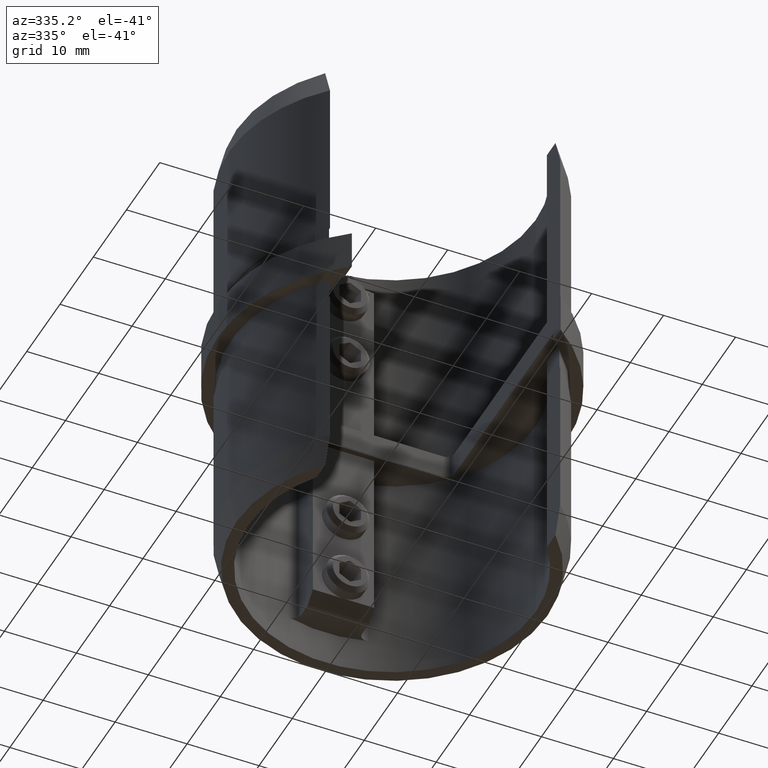
[diagram: clean part render]
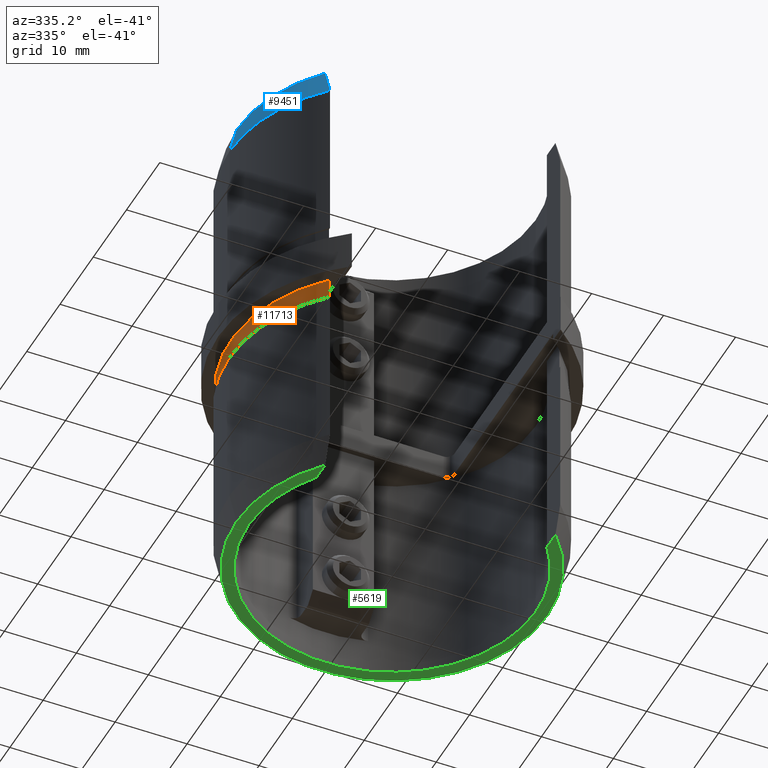
[diagram: same view with three faces highlighted in distinct colors, each labeled with its STEP entity id]
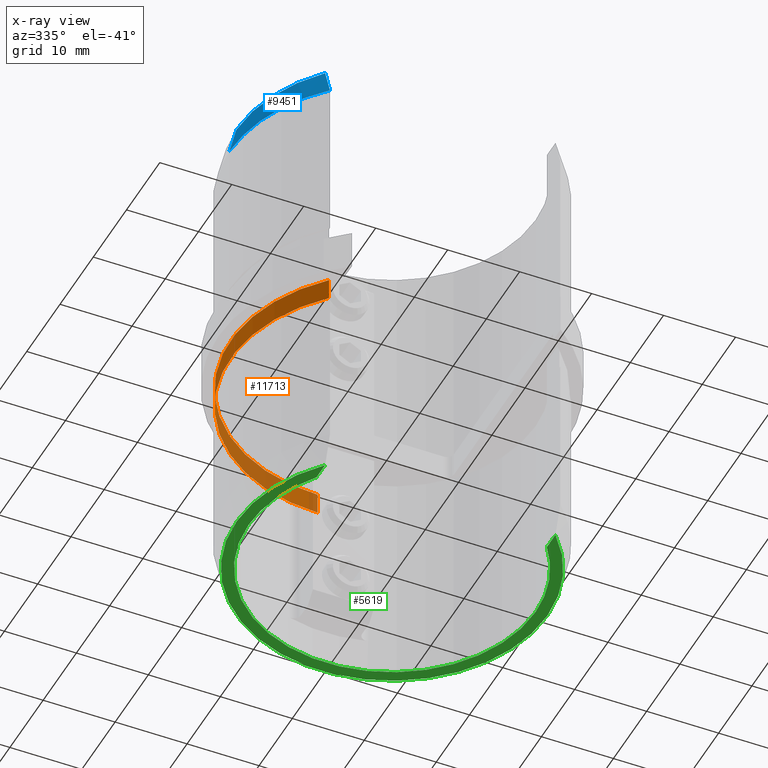
[diagram: x-ray of the same camera — body ghosted, the three highlighted faces saturated]
A machine part, auxiliary view with three faces highlighted in distinct colors.
The next image is the same camera in x-ray (body ghosted, the three faces saturated) — at least one of them is partly hidden behind the body in this view.
Their STEP definitions:

[orange] entity #11713 — the highlighted cylindrical surface (partial cylindrical patch) has radius 22.4 mm, axis along (0, -0, 1).
#32 = CYLINDRICAL_SURFACE ( 'NONE', #9538, 22.40000000000000200 ) ;
#90 = DIRECTION ( 'NONE',  ( 0.0000000000000000000, 1.000000000000000000, 1.059373115100340200E-016 ) ) ;
#424 = CARTESIAN_POINT ( 'NONE',  ( 0.0000000000000000000, 22.40000000000000200, -2.750000000000000000 ) ) ;
#1733 = CARTESIAN_POINT ( 'NONE',  ( 0.0000000000000000000, 22.40000000000000200, 2.372995777824762300E-015 ) ) ;
#1926 = ORIENTED_EDGE ( 'NONE', *, *, #10405, .T. ) ;
#2718 = CARTESIAN_POINT ( 'NONE',  ( -15.99999999999999600, -15.67673435381234800, -5.750000000000004400 ) ) ;
#3049 = AXIS2_PLACEMENT_3D ( 'NONE', #4833, #20818, #19244 ) ;
#3588 = EDGE_LOOP ( 'NONE', ( #12943, #7506, #17561, #1926 ) ) ;
#3677 = EDGE_CURVE ( 'NONE', #3925, #10492, #15122, .T. ) ;
#3925 = VERTEX_POINT ( 'NONE', #2718 ) ;
#4464 = LINE ( 'NONE', #12828, #5204 ) ;
#4833 = CARTESIAN_POINT ( 'NONE',  ( 0.0000000000000000000, 2.913276066525937600E-016, -2.750000000000002200 ) ) ;
#5001 = DIRECTION ( 'NONE',  ( -0.0000000000000000000, -1.059373115100340100E-016, 1.000000000000000000 ) ) ;
#5204 = VECTOR ( 'NONE', #5001, 1000.000000000000000 ) ;
#5341 = EDGE_CURVE ( 'NONE', #3925, #10688, #4464, .T. ) ;
#7506 = ORIENTED_EDGE ( 'NONE', *, *, #3677, .F. ) ;
#8402 = VECTOR ( 'NONE', #14388, 1000.000000000000000 ) ;
#9538 = AXIS2_PLACEMENT_3D ( 'NONE', #11467, #14748, #90 ) ;
#10405 = EDGE_CURVE ( 'NONE', #10688, #13441, #15799, .T. ) ;
#10492 = VERTEX_POINT ( 'NONE', #12754 ) ;
#10688 = VERTEX_POINT ( 'NONE', #10862 ) ;
#10862 = CARTESIAN_POINT ( 'NONE',  ( -15.99999999999999600, -15.67673435381234800, -2.750000000000000000 ) ) ;
#10905 = LINE ( 'NONE', #1733, #8402 ) ;
#11467 = CARTESIAN_POINT ( 'NONE',  ( 0.0000000000000000000, 0.0000000000000000000, 0.0000000000000000000 ) ) ;
#11713 = ADVANCED_FACE ( 'NONE', ( #17267 ), #32, .T. ) ;
#12754 = CARTESIAN_POINT ( 'NONE',  ( 0.0000000000000000000, 22.40000000000000200, -5.750000000000000000 ) ) ;
#12828 = CARTESIAN_POINT ( 'NONE',  ( -15.99999999999999600, -15.67673435381234800, -1.660751090699869100E-015 ) ) ;
#12943 = ORIENTED_EDGE ( 'NONE', *, *, #17303, .F. ) ;
#13441 = VERTEX_POINT ( 'NONE', #424 ) ;
#14388 = DIRECTION ( 'NONE',  ( -0.0000000000000000000, -1.059373115100340100E-016, 1.000000000000000000 ) ) ;
#14748 = DIRECTION ( 'NONE',  ( -0.0000000000000000000, -1.059373115100340100E-016, 1.000000000000000000 ) ) ;
#15114 = DIRECTION ( 'NONE',  ( 0.0000000000000000000, 1.000000000000000000, 1.161645184805897500E-016 ) ) ;
#15122 = CIRCLE ( 'NONE', #15641, 22.40000000000000200 ) ;
#15641 = AXIS2_PLACEMENT_3D ( 'NONE', #19961, #19819, #15114 ) ;
#15799 = CIRCLE ( 'NONE', #3049, 22.40000000000000200 ) ;
#17267 = FACE_OUTER_BOUND ( 'NONE', #3588, .T. ) ;
#17303 = EDGE_CURVE ( 'NONE', #10492, #13441, #10905, .T. ) ;
#17561 = ORIENTED_EDGE ( 'NONE', *, *, #5341, .T. ) ;
#19244 = DIRECTION ( 'NONE',  ( 0.0000000000000000000, 1.000000000000000000, 9.680376540049145900E-017 ) ) ;
#19819 = DIRECTION ( 'NONE',  ( 0.0000000000000000000, 1.059373115100340100E-016, -1.000000000000000000 ) ) ;
#19961 = CARTESIAN_POINT ( 'NONE',  ( 0.0000000000000000000, 6.091395411826958200E-016, -5.750000000000002700 ) ) ;
#20818 = DIRECTION ( 'NONE',  ( 0.0000000000000000000, 1.059373115100340100E-016, -1.000000000000000000 ) ) ;

[blue] entity #9451 — the highlighted conical surface has half-angle 14.036 deg.
#309 = CARTESIAN_POINT ( 'NONE',  ( 0.0000000000000000000, 0.0000000000000000000, 28.74999999999990100 ) ) ;
#443 = DIRECTION ( 'NONE',  ( -1.000000000000000000, 0.0000000000000000000, 0.0000000000000000000 ) ) ;
#1105 = ORIENTED_EDGE ( 'NONE', *, *, #10713, .F. ) ;
#1549 = EDGE_LOOP ( 'NONE', ( #1105, #18056, #16419, #8689 ) ) ;
#1949 = DIRECTION ( 'NONE',  ( 1.000000000000000000, 1.776356839400250500E-015, 0.0000000000000000000 ) ) ;
#2713 = B_SPLINE_CURVE_WITH_KNOTS ( 'NONE', 3,
 ( #20258, #13891, #18778, #20399 ),
 .UNSPECIFIED., .F., .F.,
 ( 4, 4 ),
 ( 0.0000000000000000000, 0.004254879584233830200 ),
 .UNSPECIFIED. ) ;
#2777 = AXIS2_PLACEMENT_3D ( 'NONE', #3639, #5053, #443 ) ;
#3575 = DIRECTION ( 'NONE',  ( 0.0000000000000000000, 0.0000000000000000000, -1.000000000000000000 ) ) ;
#3639 = CARTESIAN_POINT ( 'NONE',  ( 0.0000000000000000000, 0.0000000000000000000, 32.75000000000000000 ) ) ;
#3641 = VECTOR ( 'NONE', #16889, 1000.000000000000000 ) ;
#3953 = CARTESIAN_POINT ( 'NONE',  ( -21.59999999999998700, 0.0000000000000000000, 32.75000000000000000 ) ) ;
#5053 = DIRECTION ( 'NONE',  ( 0.0000000000000000000, 0.0000000000000000000, -1.000000000000000000 ) ) ;
#5959 = CARTESIAN_POINT ( 'NONE',  ( -15.99999999999999600, -15.96120296218302500, 28.74999999999990100 ) ) ;
#6295 = EDGE_CURVE ( 'NONE', #12112, #15494, #20359, .T. ) ;
#6591 = CARTESIAN_POINT ( 'NONE',  ( -15.99999999999999600, -14.51068571777362600, 32.75000000000000000 ) ) ;
#7826 = CARTESIAN_POINT ( 'NONE',  ( 0.0000000000000000000, 0.0000000000000000000, 32.75000000000000000 ) ) ;
#8054 = AXIS2_PLACEMENT_3D ( 'NONE', #7826, #12978, #20773 ) ;
#8587 = CARTESIAN_POINT ( 'NONE',  ( -21.59999999999998700, 0.0000000000000000000, 32.75000000000000000 ) ) ;
#8689 = ORIENTED_EDGE ( 'NONE', *, *, #18717, .F. ) ;
#9451 = ADVANCED_FACE ( 'NONE', ( #18819 ), #19313, .T. ) ;
#10713 = EDGE_CURVE ( 'NONE', #20991, #15968, #15787, .T. ) ;
#12112 = VERTEX_POINT ( 'NONE', #5959 ) ;
#12978 = DIRECTION ( 'NONE',  ( 0.0000000000000000000, 0.0000000000000000000, 1.000000000000000000 ) ) ;
#13891 = CARTESIAN_POINT ( 'NONE',  ( -15.99999999999999600, -15.00536405332283100, 31.42071817434334600 ) ) ;
#14877 = EDGE_CURVE ( 'NONE', #20991, #15494, #20842, .T. ) ;
#15494 = VERTEX_POINT ( 'NONE', #17204 ) ;
#15787 = CIRCLE ( 'NONE', #8054, 21.59999999999998700 ) ;
#15968 = VERTEX_POINT ( 'NONE', #6591 ) ;
#16419 = ORIENTED_EDGE ( 'NONE', *, *, #6295, .F. ) ;
#16428 = AXIS2_PLACEMENT_3D ( 'NONE', #309, #3575, #1949 ) ;
#16889 = DIRECTION ( 'NONE',  ( -0.2425356250363306100, 0.0000000000000000000, -0.9701425001453325400 ) ) ;
#17204 = CARTESIAN_POINT ( 'NONE',  ( -22.60000000000000100, 0.0000000000000000000, 28.74999999999990100 ) ) ;
#18056 = ORIENTED_EDGE ( 'NONE', *, *, #14877, .T. ) ;
#18717 = EDGE_CURVE ( 'NONE', #15968, #12112, #2713, .T. ) ;
#18778 = CARTESIAN_POINT ( 'NONE',  ( -15.99999999999999600, -15.48791372974197600, 30.08703814138176100 ) ) ;
#18819 = FACE_OUTER_BOUND ( 'NONE', #1549, .T. ) ;
#19313 = CONICAL_SURFACE ( 'NONE', #2777, 21.59999999999998700, 0.2449786631268616700 ) ;
#20258 = CARTESIAN_POINT ( 'NONE',  ( -15.99999999999999600, -14.51068571777362600, 32.75000000000000000 ) ) ;
#20359 = CIRCLE ( 'NONE', #16428, 22.60000000000000100 ) ;
#20399 = CARTESIAN_POINT ( 'NONE',  ( -15.99999999999999600, -15.96120296218302500, 28.74999999999990100 ) ) ;
#20773 = DIRECTION ( 'NONE',  ( 1.000000000000000000, 0.0000000000000000000, 0.0000000000000000000 ) ) ;
#20842 = LINE ( 'NONE', #3953, #3641 ) ;
#20991 = VERTEX_POINT ( 'NONE', #8587 ) ;

[green] entity #5619 — the highlighted planar face has unit normal (0, 0, -1).
#808 = EDGE_CURVE ( 'NONE', #5834, #14284, #19176, .T. ) ;
#1163 = DIRECTION ( 'NONE',  ( 0.0000000000000000000, 0.0000000000000000000, -1.000000000000000000 ) ) ;
#1208 = DIRECTION ( 'NONE',  ( 1.000000000000000000, 0.0000000000000000000, 0.0000000000000000000 ) ) ;
#1346 = CARTESIAN_POINT ( 'NONE',  ( 0.0000000000000000000, 0.0000000000000000000, -32.75000000000000000 ) ) ;
#1411 = AXIS2_PLACEMENT_3D ( 'NONE', #7299, #12179, #5470 ) ;
#1531 = CARTESIAN_POINT ( 'NONE',  ( 0.0000000000000000000, 0.0000000000000000000, -32.75000000000000000 ) ) ;
#1838 = EDGE_CURVE ( 'NONE', #15698, #5673, #2236, .T. ) ;
#2236 = CIRCLE ( 'NONE', #2742, 21.59999999999998700 ) ;
#2731 = DIRECTION ( 'NONE',  ( 1.000000000000000000, 0.0000000000000000000, 0.0000000000000000000 ) ) ;
#2742 = AXIS2_PLACEMENT_3D ( 'NONE', #1346, #20582, #1208 ) ;
#2811 = DIRECTION ( 'NONE',  ( 8.577712597618404300E-016, -1.000000000000000000, 0.0000000000000000000 ) ) ;
#2922 = CIRCLE ( 'NONE', #1411, 19.94999999999999600 ) ;
#3770 = AXIS2_PLACEMENT_3D ( 'NONE', #9420, #15944, #9619 ) ;
#4177 = AXIS2_PLACEMENT_3D ( 'NONE', #17263, #6151, #18880 ) ;
#4461 = CARTESIAN_POINT ( 'NONE',  ( -21.59999999999998700, 0.0000000000000000000, -32.75000000000000000 ) ) ;
#4515 = DIRECTION ( 'NONE',  ( 0.0000000000000000000, 0.0000000000000000000, -1.000000000000000000 ) ) ;
#4825 = ORIENTED_EDGE ( 'NONE', *, *, #7448, .F. ) ;
#4962 = CARTESIAN_POINT ( 'NONE',  ( 19.94999999999999600, -2.443170364298969000E-015, -32.75000000000000000 ) ) ;
#4996 = CARTESIAN_POINT ( 'NONE',  ( -19.94999999999999600, 0.0000000000000000000, -32.75000000000000000 ) ) ;
#5362 = LINE ( 'NONE', #12490, #20019 ) ;
#5470 = DIRECTION ( 'NONE',  ( 1.000000000000000000, 0.0000000000000000000, 0.0000000000000000000 ) ) ;
#5619 = ADVANCED_FACE ( 'NONE', ( #10745 ), #9083, .T. ) ;
#5673 = VERTEX_POINT ( 'NONE', #9227 ) ;
#5834 = VERTEX_POINT ( 'NONE', #9622 ) ;
#5968 = CARTESIAN_POINT ( 'NONE',  ( 0.0000000000000000000, 0.0000000000000000000, -32.75000000000000000 ) ) ;
#5981 = DIRECTION ( 'NONE',  ( -0.0000000000000000000, -0.0000000000000000000, 1.000000000000000000 ) ) ;
#6151 = DIRECTION ( 'NONE',  ( 0.0000000000000000000, 0.0000000000000000000, -1.000000000000000000 ) ) ;
#6224 = VERTEX_POINT ( 'NONE', #11471 ) ;
#6621 = CIRCLE ( 'NONE', #4177, 19.94999999999999600 ) ;
#7299 = CARTESIAN_POINT ( 'NONE',  ( 0.0000000000000000000, 0.0000000000000000000, -32.75000000000000000 ) ) ;
#7448 = EDGE_CURVE ( 'NONE', #14284, #9800, #2922, .T. ) ;
#8347 = CARTESIAN_POINT ( 'NONE',  ( 16.00000000000000000, -11.91648018502107400, -32.75000000000000000 ) ) ;
#8433 = ORIENTED_EDGE ( 'NONE', *, *, #9180, .F. ) ;
#9083 = PLANE ( 'NONE',  #18605 ) ;
#9180 = EDGE_CURVE ( 'NONE', #5673, #13695, #19082, .T. ) ;
#9227 = CARTESIAN_POINT ( 'NONE',  ( 21.59999999999998700, -2.706469426115650200E-015, -32.75000000000000000 ) ) ;
#9420 = CARTESIAN_POINT ( 'NONE',  ( 0.0000000000000000000, 0.0000000000000000000, -32.75000000000000000 ) ) ;
#9503 = CARTESIAN_POINT ( 'NONE',  ( 0.0000000000000000000, 0.0000000000000000000, -32.75000000000000000 ) ) ;
#9619 = DIRECTION ( 'NONE',  ( 1.000000000000000000, 0.0000000000000000000, 0.0000000000000000000 ) ) ;
#9622 = CARTESIAN_POINT ( 'NONE',  ( -16.00000000000000000, -11.91648018502107800, -32.75000000000000000 ) ) ;
#9800 = VERTEX_POINT ( 'NONE', #4962 ) ;
#10745 = FACE_OUTER_BOUND ( 'NONE', #13997, .T. ) ;
#10902 = DIRECTION ( 'NONE',  ( 1.000000000000000000, 0.0000000000000000000, 0.0000000000000000000 ) ) ;
#11167 = CARTESIAN_POINT ( 'NONE',  ( -15.99999999999999600, -15.96120296218302500, -32.75000000000000000 ) ) ;
#11471 = CARTESIAN_POINT ( 'NONE',  ( -15.99999999999999600, -14.51068571777362600, -32.75000000000000000 ) ) ;
#12179 = DIRECTION ( 'NONE',  ( 0.0000000000000000000, 0.0000000000000000000, -1.000000000000000000 ) ) ;
#12425 = ORIENTED_EDGE ( 'NONE', *, *, #17273, .F. ) ;
#12490 = CARTESIAN_POINT ( 'NONE',  ( 16.00000000000000000, -11.91648018502107400, -32.75000000000000000 ) ) ;
#13199 = CIRCLE ( 'NONE', #3770, 21.59999999999998700 ) ;
#13324 = AXIS2_PLACEMENT_3D ( 'NONE', #9503, #5981, #2731 ) ;
#13695 = VERTEX_POINT ( 'NONE', #4461 ) ;
#13997 = EDGE_LOOP ( 'NONE', ( #12425, #18821, #4825, #14063, #19459, #20547, #8433, #15076 ) ) ;
#14063 = ORIENTED_EDGE ( 'NONE', *, *, #808, .F. ) ;
#14284 = VERTEX_POINT ( 'NONE', #4996 ) ;
#15076 = ORIENTED_EDGE ( 'NONE', *, *, #1838, .F. ) ;
#15367 = AXIS2_PLACEMENT_3D ( 'NONE', #1531, #4515, #15847 ) ;
#15698 = VERTEX_POINT ( 'NONE', #20797 ) ;
#15846 = VERTEX_POINT ( 'NONE', #8347 ) ;
#15847 = DIRECTION ( 'NONE',  ( 1.000000000000000000, 0.0000000000000000000, 0.0000000000000000000 ) ) ;
#15944 = DIRECTION ( 'NONE',  ( -0.0000000000000000000, -0.0000000000000000000, 1.000000000000000000 ) ) ;
#16063 = EDGE_CURVE ( 'NONE', #13695, #6224, #13199, .T. ) ;
#16118 = EDGE_CURVE ( 'NONE', #6224, #5834, #18285, .T. ) ;
#16529 = EDGE_CURVE ( 'NONE', #9800, #15846, #6621, .T. ) ;
#17263 = CARTESIAN_POINT ( 'NONE',  ( 0.0000000000000000000, 0.0000000000000000000, -32.75000000000000000 ) ) ;
#17273 = EDGE_CURVE ( 'NONE', #15846, #15698, #5362, .T. ) ;
#17277 = VECTOR ( 'NONE', #17496, 1000.000000000000000 ) ;
#17496 = DIRECTION ( 'NONE',  ( -8.577712597618404300E-016, 1.000000000000000000, 0.0000000000000000000 ) ) ;
#18285 = LINE ( 'NONE', #11167, #17277 ) ;
#18605 = AXIS2_PLACEMENT_3D ( 'NONE', #5968, #1163, #10902 ) ;
#18821 = ORIENTED_EDGE ( 'NONE', *, *, #16529, .F. ) ;
#18880 = DIRECTION ( 'NONE',  ( 1.000000000000000000, 0.0000000000000000000, 0.0000000000000000000 ) ) ;
#19082 = CIRCLE ( 'NONE', #13324, 21.59999999999998700 ) ;
#19176 = CIRCLE ( 'NONE', #15367, 19.94999999999999600 ) ;
#19459 = ORIENTED_EDGE ( 'NONE', *, *, #16118, .F. ) ;
#20019 = VECTOR ( 'NONE', #2811, 1000.000000000000000 ) ;
#20547 = ORIENTED_EDGE ( 'NONE', *, *, #16063, .F. ) ;
#20582 = DIRECTION ( 'NONE',  ( -0.0000000000000000000, -0.0000000000000000000, 1.000000000000000000 ) ) ;
#20797 = CARTESIAN_POINT ( 'NONE',  ( 16.00000000000000400, -14.51068571777362100, -32.75000000000000000 ) ) ;